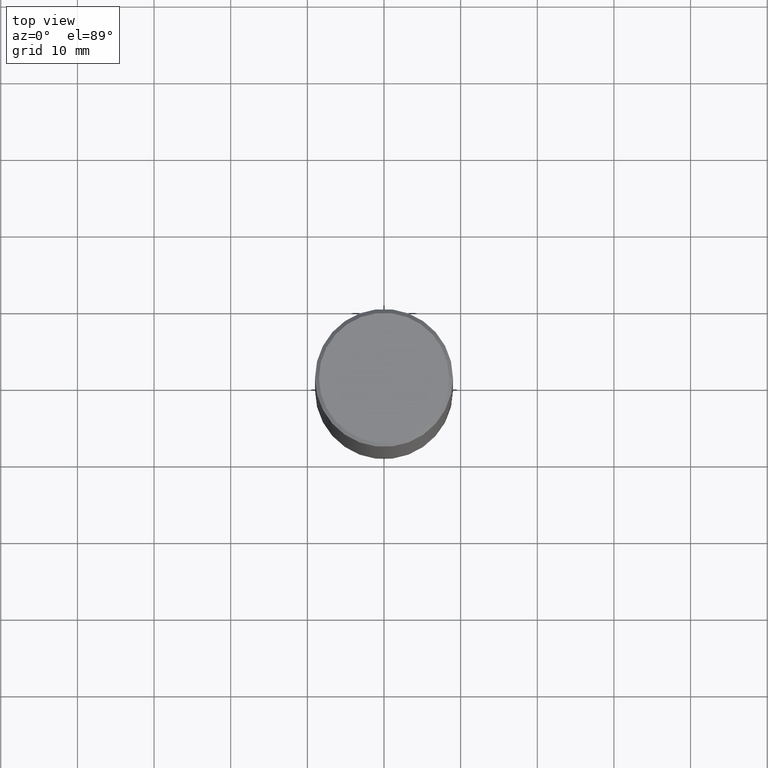
[diagram: clean part render]
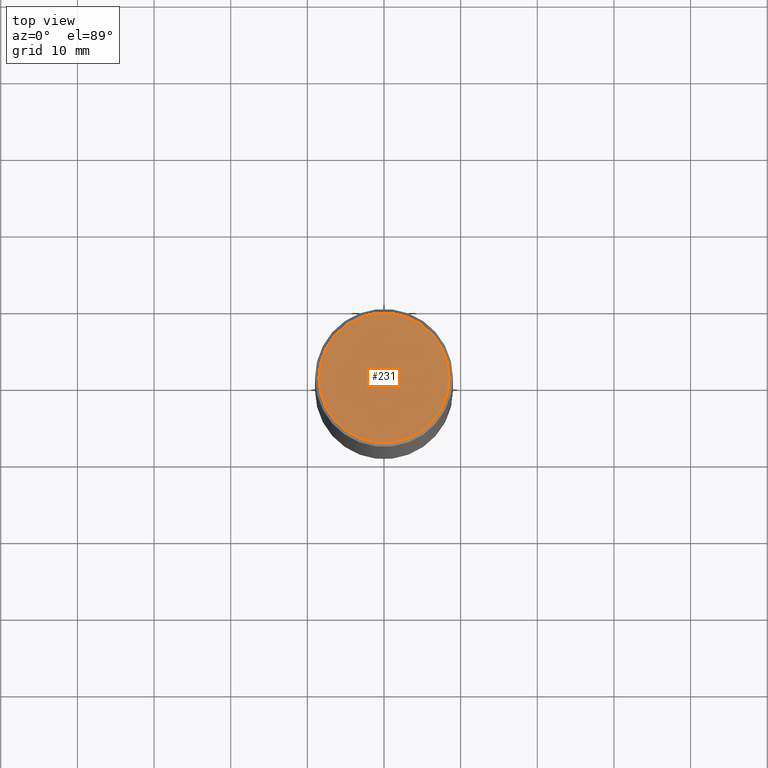
[diagram: same view with one face highlighted and labeled with its STEP entity id]
A machine part, top view. The second image highlights one B-rep face of the part: STEP entity #231.
In plain terms, the highlighted planar face has unit normal (0, -0, -1).
Its self-contained STEP definition (entity closure, byte-faithful):
#2 = DIRECTION ( 'NONE',  ( -2.445468806185136597E-29, 3.491481338843145583E-15, 1.000000000000000000 ) ) ;
#30 = CARTESIAN_POINT ( 'NONE',  ( 2.334753571284400520E-15, 0.3343499999999996475, -1.165242529397154385E-15 ) ) ;
#38 = VERTEX_POINT ( 'NONE', #183 ) ;
#53 = PLANE ( 'NONE',  #82 ) ;
#66 = DIRECTION ( 'NONE',  ( 1.000000000000000000, -6.982962677686266711E-15, 4.876061227832602160E-29 ) ) ;
#82 = AXIS2_PLACEMENT_3D ( 'NONE', #30, #304, #273 ) ;
#86 = CARTESIAN_POINT ( 'NONE',  ( 0.3343499999999996475, -2.397327298921056737E-15, 4.268512490116958099E-18 ) ) ;
#120 = ORIENTED_EDGE ( 'NONE', *, *, #342, .T. ) ;
#169 = DIRECTION ( 'NONE',  ( 1.000000000000000000, -6.982962677686266711E-15, 4.876061227832602160E-29 ) ) ;
#183 = CARTESIAN_POINT ( 'NONE',  ( -0.3343499999999996475, 2.369668384672832169E-15, 4.268512490083961526E-18 ) ) ;
#213 = DIRECTION ( 'NONE',  ( -2.445468806185136597E-29, 3.491481338843145583E-15, 1.000000000000000000 ) ) ;
#216 = CIRCLE ( 'NONE', #302, 0.3343499999999996475 ) ;
#219 = EDGE_CURVE ( 'NONE', #240, #38, #282, .T. ) ;
#231 = ADVANCED_FACE ( 'NONE', ( #334 ), #53, .F. ) ;
#234 = CARTESIAN_POINT ( 'NONE',  ( -1.043851414335219820E-46, 1.490343170380447200E-32, 4.268512490100411279E-18 ) ) ;
#240 = VERTEX_POINT ( 'NONE', #86 ) ;
#252 = CARTESIAN_POINT ( 'NONE',  ( -1.043851414335219820E-46, 1.490343170380447200E-32, 4.268512490100411279E-18 ) ) ;
#257 = ORIENTED_EDGE ( 'NONE', *, *, #219, .T. ) ;
#273 = DIRECTION ( 'NONE',  ( -1.000000000000000000, 6.982962677686265922E-15, -4.876176775795935793E-29 ) ) ;
#274 = AXIS2_PLACEMENT_3D ( 'NONE', #234, #213, #169 ) ;
#282 = CIRCLE ( 'NONE', #274, 0.3343499999999996475 ) ;
#302 = AXIS2_PLACEMENT_3D ( 'NONE', #252, #2, #66 ) ;
#304 = DIRECTION ( 'NONE',  ( 2.438088387897960049E-29, -3.491481338843145188E-15, -1.000000000000000000 ) ) ;
#334 = FACE_OUTER_BOUND ( 'NONE', #365, .T. ) ;
#342 = EDGE_CURVE ( 'NONE', #38, #240, #216, .T. ) ;
#365 = EDGE_LOOP ( 'NONE', ( #120, #257 ) ) ;